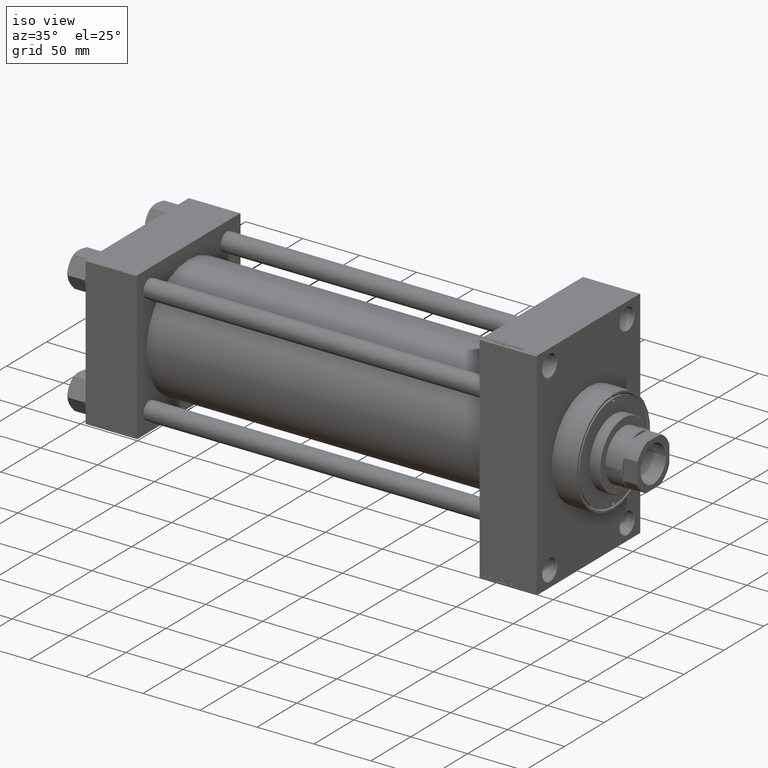
[diagram: clean part render]
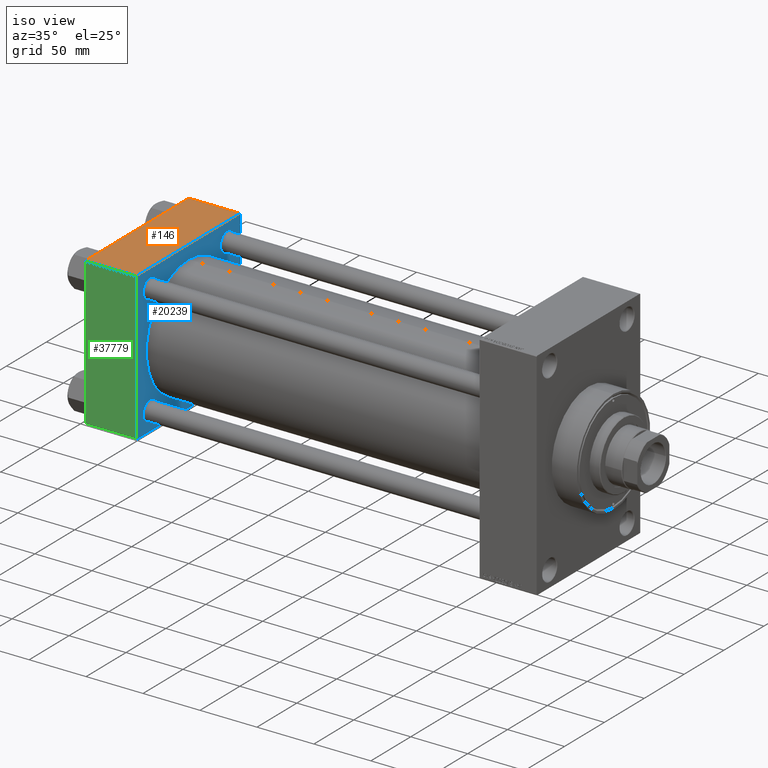
[diagram: same view with three faces highlighted in distinct colors, each labeled with its STEP entity id]
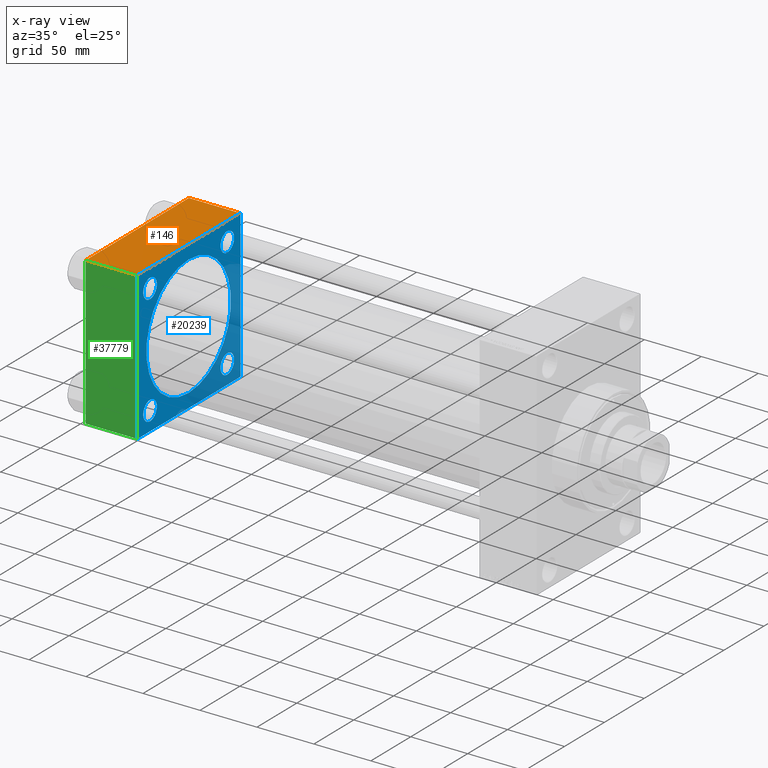
[diagram: x-ray of the same camera — body ghosted, the three highlighted faces saturated]
A machine part, iso view with three faces highlighted in distinct colors.
The next image is the same camera in x-ray (body ghosted, the three faces saturated) — at least one of them is partly hidden behind the body in this view.
Their STEP definitions:

[orange] entity #146 — the highlighted planar face has unit normal (0, 0, -1).
#146 = ADVANCED_FACE ( 'NONE', ( #1379 ), #15192, .F. ) ;
#1379 = FACE_OUTER_BOUND ( 'NONE', #41665, .T. ) ;
#1572 = ORIENTED_EDGE ( 'NONE', *, *, #14324, .T. ) ;
#3496 = CARTESIAN_POINT ( 'NONE',  ( 0.000000000000000000, 64.49999999999997158, 65.00000000000001421 ) ) ;
#4188 = CARTESIAN_POINT ( 'NONE',  ( 45.00000000000000000, 64.49999999999997158, 65.00000000000001421 ) ) ;
#4208 = VERTEX_POINT ( 'NONE', #4188 ) ;
#4721 = VECTOR ( 'NONE', #36672, 1000.000000000000000 ) ;
#8999 = LINE ( 'NONE', #22829, #17438 ) ;
#12673 = EDGE_CURVE ( 'NONE', #23433, #38863, #8999, .T. ) ;
#13557 = CARTESIAN_POINT ( 'NONE',  ( 45.00000000000000000, -64.49999999999997158, 65.00000000000000000 ) ) ;
#14324 = EDGE_CURVE ( 'NONE', #4208, #41611, #23452, .T. ) ;
#15192 = PLANE ( 'NONE',  #22411 ) ;
#16128 = DIRECTION ( 'NONE',  ( 0.000000000000000000, 1.067522139062650548E-16, -1.000000000000000000 ) ) ;
#17438 = VECTOR ( 'NONE', #18955, 1000.000000000000000 ) ;
#18955 = DIRECTION ( 'NONE',  ( 1.000000000000000000, 0.000000000000000000, 0.000000000000000000 ) ) ;
#19081 = ORIENTED_EDGE ( 'NONE', *, *, #28165, .T. ) ;
#19819 = CARTESIAN_POINT ( 'NONE',  ( 0.000000000000000000, 64.49999999999997158, 65.00000000000001421 ) ) ;
#22411 = AXIS2_PLACEMENT_3D ( 'NONE', #33844, #16128, #44983 ) ;
#22829 = CARTESIAN_POINT ( 'NONE',  ( 45.00000000000000000, -64.49999999999997158, 65.00000000000000000 ) ) ;
#23433 = VERTEX_POINT ( 'NONE', #27200 ) ;
#23452 = LINE ( 'NONE', #19819, #35317 ) ;
#24141 = CARTESIAN_POINT ( 'NONE',  ( 0.000000000000000000, 65.00000000000000000, 65.00000000000001421 ) ) ;
#27200 = CARTESIAN_POINT ( 'NONE',  ( 0.000000000000000000, -64.49999999999997158, 65.00000000000000000 ) ) ;
#28165 = EDGE_CURVE ( 'NONE', #41611, #23433, #42565, .T. ) ;
#30137 = DIRECTION ( 'NONE',  ( 0.000000000000000000, -1.000000000000000000, -1.067522139062650425E-16 ) ) ;
#33059 = LINE ( 'NONE', #37402, #40247 ) ;
#33844 = CARTESIAN_POINT ( 'NONE',  ( 45.00000000000000000, 65.00000000000000000, 65.00000000000001421 ) ) ;
#34605 = DIRECTION ( 'NONE',  ( -1.000000000000000000, 0.000000000000000000, 0.000000000000000000 ) ) ;
#35317 = VECTOR ( 'NONE', #34605, 1000.000000000000000 ) ;
#36672 = DIRECTION ( 'NONE',  ( 0.000000000000000000, -1.000000000000000000, -1.067522139062650425E-16 ) ) ;
#37402 = CARTESIAN_POINT ( 'NONE',  ( 45.00000000000000000, 65.00000000000000000, 65.00000000000001421 ) ) ;
#38863 = VERTEX_POINT ( 'NONE', #13557 ) ;
#39755 = ORIENTED_EDGE ( 'NONE', *, *, #40709, .F. ) ;
#40247 = VECTOR ( 'NONE', #30137, 1000.000000000000000 ) ;
#40709 = EDGE_CURVE ( 'NONE', #4208, #38863, #33059, .T. ) ;
#41611 = VERTEX_POINT ( 'NONE', #3496 ) ;
#41665 = EDGE_LOOP ( 'NONE', ( #19081, #46612, #39755, #1572 ) ) ;
#42565 = LINE ( 'NONE', #24141, #4721 ) ;
#44983 = DIRECTION ( 'NONE',  ( 0.000000000000000000, 1.000000000000000000, 1.067522139062650548E-16 ) ) ;
#46612 = ORIENTED_EDGE ( 'NONE', *, *, #12673, .T. ) ;

[blue] entity #20239 — the highlighted planar face has unit normal (-1, 0, 0).
#880 = CARTESIAN_POINT ( 'NONE',  ( 45.00000000000000000, -48.44999999999999574, 48.45000000000003126 ) ) ;
#1346 = ORIENTED_EDGE ( 'NONE', *, *, #9641, .F. ) ;
#1368 = CARTESIAN_POINT ( 'NONE',  ( 45.00000000000000000, -64.49999999999994316, -65.00000000000000000 ) ) ;
#1771 = CIRCLE ( 'NONE', #40459, 8.499999999999952038 ) ;
#1846 = LINE ( 'NONE', #16598, #12914 ) ;
#2494 = CARTESIAN_POINT ( 'NONE',  ( 45.00000000000000000, 48.45000000000000995, -48.45000000000001705 ) ) ;
#2545 = CARTESIAN_POINT ( 'NONE',  ( 45.00000000000000000, 48.45000000000000995, 48.45000000000001705 ) ) ;
#2917 = LINE ( 'NONE', #29563, #18646 ) ;
#3108 = AXIS2_PLACEMENT_3D ( 'NONE', #880, #4498, #14928 ) ;
#3159 = DIRECTION ( 'NONE',  ( 0.000000000000000000, 0.000000000000000000, -1.000000000000000000 ) ) ;
#3241 = EDGE_LOOP ( 'NONE', ( #39406, #43212, #11653, #4485, #29280, #11191, #45249, #31557 ) ) ;
#3296 = FACE_BOUND ( 'NONE', #41441, .T. ) ;
#3339 = EDGE_CURVE ( 'NONE', #28253, #22154, #2917, .T. ) ;
#3673 = ORIENTED_EDGE ( 'NONE', *, *, #45056, .F. ) ;
#3776 = DIRECTION ( 'NONE',  ( 0.000000000000000000, 0.000000000000000000, 1.000000000000000000 ) ) ;
#3851 = VECTOR ( 'NONE', #7591, 1000.000000000000114 ) ;
#4188 = CARTESIAN_POINT ( 'NONE',  ( 45.00000000000000000, 64.49999999999997158, 65.00000000000001421 ) ) ;
#4208 = VERTEX_POINT ( 'NONE', #4188 ) ;
#4229 = EDGE_CURVE ( 'NONE', #9117, #27866, #46635, .T. ) ;
#4485 = ORIENTED_EDGE ( 'NONE', *, *, #36975, .T. ) ;
#4498 = DIRECTION ( 'NONE',  ( -1.000000000000000000, 0.000000000000000000, -0.000000000000000000 ) ) ;
#4631 = VERTEX_POINT ( 'NONE', #29457 ) ;
#4808 = VECTOR ( 'NONE', #37698, 1000.000000000000000 ) ;
#6100 = DIRECTION ( 'NONE',  ( -0.000000000000000000, 0.7071067811865474617, 0.7071067811865474617 ) ) ;
#6120 = DIRECTION ( 'NONE',  ( 0.000000000000000000, 0.000000000000000000, 1.000000000000000000 ) ) ;
#6325 = AXIS2_PLACEMENT_3D ( 'NONE', #39061, #27925, #28167 ) ;
#6394 = EDGE_CURVE ( 'NONE', #26776, #38303, #6453, .T. ) ;
#6453 = CIRCLE ( 'NONE', #37405, 8.500000000000063949 ) ;
#6663 = EDGE_CURVE ( 'NONE', #38863, #28253, #23075, .T. ) ;
#6849 = CIRCLE ( 'NONE', #47856, 8.500000000000063949 ) ;
#7133 = CIRCLE ( 'NONE', #6325, 53.00000000000000711 ) ;
#7180 = DIRECTION ( 'NONE',  ( -1.000000000000000000, 0.000000000000000000, -0.000000000000000000 ) ) ;
#7542 = VERTEX_POINT ( 'NONE', #9289 ) ;
#7591 = DIRECTION ( 'NONE',  ( 0.000000000000000000, -0.7071067811865474617, 0.7071067811865474617 ) ) ;
#7848 = DIRECTION ( 'NONE',  ( -0.000000000000000000, -0.7071067811865672237, -0.7071067811865279218 ) ) ;
#8041 = DIRECTION ( 'NONE',  ( 0.000000000000000000, 0.000000000000000000, 1.000000000000000000 ) ) ;
#8393 = DIRECTION ( 'NONE',  ( 0.000000000000000000, -1.000000000000000000, -1.067522139062650425E-16 ) ) ;
#8643 = CIRCLE ( 'NONE', #29539, 8.499999999999952038 ) ;
#9117 = VERTEX_POINT ( 'NONE', #10980 ) ;
#9289 = CARTESIAN_POINT ( 'NONE',  ( 45.00000000000000000, -64.49999999999994316, -65.00000000000000000 ) ) ;
#9641 = EDGE_CURVE ( 'NONE', #12181, #38027, #27437, .T. ) ;
#9921 = ORIENTED_EDGE ( 'NONE', *, *, #33663, .T. ) ;
#10233 = DIRECTION ( 'NONE',  ( -1.000000000000000000, 0.000000000000000000, -0.000000000000000000 ) ) ;
#10287 = DIRECTION ( 'NONE',  ( 0.000000000000000000, 0.000000000000000000, 1.000000000000000000 ) ) ;
#10683 = VERTEX_POINT ( 'NONE', #14409 ) ;
#10763 = DIRECTION ( 'NONE',  ( -1.000000000000000000, 0.000000000000000000, -0.000000000000000000 ) ) ;
#10980 = CARTESIAN_POINT ( 'NONE',  ( 45.00000000000000000, -48.44999999999999574, 56.95000000000008811 ) ) ;
#10982 = CARTESIAN_POINT ( 'NONE',  ( 45.00000000000000000, 64.49999999999997158, 65.00000000000001421 ) ) ;
#11191 = ORIENTED_EDGE ( 'NONE', *, *, #6663, .T. ) ;
#11653 = ORIENTED_EDGE ( 'NONE', *, *, #14832, .F. ) ;
#12181 = VERTEX_POINT ( 'NONE', #28789 ) ;
#12463 = VERTEX_POINT ( 'NONE', #24299 ) ;
#12914 = VECTOR ( 'NONE', #8393, 1000.000000000000000 ) ;
#13316 = AXIS2_PLACEMENT_3D ( 'NONE', #2494, #23797, #6120 ) ;
#13511 = AXIS2_PLACEMENT_3D ( 'NONE', #40600, #22179, #3776 ) ;
#13557 = CARTESIAN_POINT ( 'NONE',  ( 45.00000000000000000, -64.49999999999997158, 65.00000000000000000 ) ) ;
#14409 = CARTESIAN_POINT ( 'NONE',  ( 45.00000000000000000, 64.49999999999997158, -64.99999999999998579 ) ) ;
#14434 = FACE_BOUND ( 'NONE', #14868, .T. ) ;
#14832 = EDGE_CURVE ( 'NONE', #33095, #4631, #22870, .T. ) ;
#14868 = EDGE_LOOP ( 'NONE', ( #3673, #1346 ) ) ;
#14928 = DIRECTION ( 'NONE',  ( 0.000000000000000000, 0.000000000000000000, 1.000000000000000000 ) ) ;
#15363 = DIRECTION ( 'NONE',  ( 0.000000000000000000, 0.000000000000000000, -1.000000000000000000 ) ) ;
#15514 = EDGE_LOOP ( 'NONE', ( #42728, #26293 ) ) ;
#15580 = CARTESIAN_POINT ( 'NONE',  ( 45.00000000000000000, -48.44999999999999574, -39.94999999999996732 ) ) ;
#15757 = EDGE_CURVE ( 'NONE', #10683, #4631, #25218, .T. ) ;
#16521 = DIRECTION ( 'NONE',  ( -1.000000000000000000, 0.000000000000000000, -0.000000000000000000 ) ) ;
#16598 = CARTESIAN_POINT ( 'NONE',  ( 45.00000000000000000, 65.00000000000000000, -64.99999999999998579 ) ) ;
#17489 = DIRECTION ( 'NONE',  ( 0.000000000000000000, 0.000000000000000000, 1.000000000000000000 ) ) ;
#18319 = EDGE_CURVE ( 'NONE', #10683, #7542, #1846, .T. ) ;
#18450 = DIRECTION ( 'NONE',  ( -1.000000000000000000, 0.000000000000000000, -0.000000000000000000 ) ) ;
#18646 = VECTOR ( 'NONE', #3159, 1000.000000000000000 ) ;
#18673 = ORIENTED_EDGE ( 'NONE', *, *, #23515, .T. ) ;
#18693 = CARTESIAN_POINT ( 'NONE',  ( 45.00000000000000000, -48.44999999999999574, -48.45000000000003126 ) ) ;
#18705 = CIRCLE ( 'NONE', #13316, 8.499999999999952038 ) ;
#18757 = CARTESIAN_POINT ( 'NONE',  ( 45.00000000000000000, 65.00000000000000000, 65.00000000000001421 ) ) ;
#18800 = CARTESIAN_POINT ( 'NONE',  ( 45.00000000000000000, 48.45000000000000995, 39.95000000000005969 ) ) ;
#19141 = ORIENTED_EDGE ( 'NONE', *, *, #41407, .T. ) ;
#20239 = ADVANCED_FACE ( 'NONE', ( #36473, #28256, #3296, #47619, #14434, #29220 ), #43980, .F. ) ;
#20984 = DIRECTION ( 'NONE',  ( -0.000000000000000000, 0.000000000000000000, 1.000000000000000000 ) ) ;
#21233 = CARTESIAN_POINT ( 'NONE',  ( 45.00000000000000000, -65.00000000000000000, 64.50000000000000000 ) ) ;
#21390 = LINE ( 'NONE', #10982, #3851 ) ;
#21603 = CARTESIAN_POINT ( 'NONE',  ( 45.00000000000000000, 48.45000000000000995, -48.45000000000001705 ) ) ;
#22154 = VERTEX_POINT ( 'NONE', #45711 ) ;
#22179 = DIRECTION ( 'NONE',  ( 1.000000000000000000, -0.000000000000000000, 0.000000000000000000 ) ) ;
#22425 = DIRECTION ( 'NONE',  ( -1.000000000000000000, 0.000000000000000000, -0.000000000000000000 ) ) ;
#22870 = LINE ( 'NONE', #18757, #40725 ) ;
#22921 = LINE ( 'NONE', #1368, #4808 ) ;
#23075 = LINE ( 'NONE', #26482, #30426 ) ;
#23515 = EDGE_CURVE ( 'NONE', #39268, #43804, #39315, .T. ) ;
#23547 = ORIENTED_EDGE ( 'NONE', *, *, #6394, .T. ) ;
#23797 = DIRECTION ( 'NONE',  ( -1.000000000000000000, 0.000000000000000000, -0.000000000000000000 ) ) ;
#24299 = CARTESIAN_POINT ( 'NONE',  ( 45.00000000000000000, 48.45000000000000995, -39.95000000000005969 ) ) ;
#24915 = CARTESIAN_POINT ( 'NONE',  ( 44.99999999999998579, -2.602085213965210642E-15, 53.00000000000000711 ) ) ;
#25218 = LINE ( 'NONE', #40002, #44622 ) ;
#26293 = ORIENTED_EDGE ( 'NONE', *, *, #43831, .T. ) ;
#26426 = CARTESIAN_POINT ( 'NONE',  ( 45.00000000000000000, 48.45000000000000995, -56.94999999999996732 ) ) ;
#26482 = CARTESIAN_POINT ( 'NONE',  ( 45.00000000000000000, -65.00000000000000000, 64.50000000000000000 ) ) ;
#26776 = VERTEX_POINT ( 'NONE', #28038 ) ;
#27413 = DIRECTION ( 'NONE',  ( -1.000000000000000000, 0.000000000000000000, -0.000000000000000000 ) ) ;
#27437 = CIRCLE ( 'NONE', #13511, 53.00000000000000711 ) ;
#27555 = VERTEX_POINT ( 'NONE', #26426 ) ;
#27866 = VERTEX_POINT ( 'NONE', #40179 ) ;
#27925 = DIRECTION ( 'NONE',  ( 1.000000000000000000, -0.000000000000000000, 0.000000000000000000 ) ) ;
#28038 = CARTESIAN_POINT ( 'NONE',  ( 45.00000000000000000, -48.44999999999999574, -56.95000000000008811 ) ) ;
#28167 = DIRECTION ( 'NONE',  ( 0.000000000000000000, 0.000000000000000000, 1.000000000000000000 ) ) ;
#28253 = VERTEX_POINT ( 'NONE', #21233 ) ;
#28256 = FACE_BOUND ( 'NONE', #15514, .T. ) ;
#28789 = CARTESIAN_POINT ( 'NONE',  ( 44.99999999999998579, 3.888542821515762466E-15, -53.00000000000000711 ) ) ;
#29220 = FACE_OUTER_BOUND ( 'NONE', #3241, .T. ) ;
#29280 = ORIENTED_EDGE ( 'NONE', *, *, #40709, .T. ) ;
#29457 = CARTESIAN_POINT ( 'NONE',  ( 45.00000000000000000, 65.00000000000000000, -64.49999999999995737 ) ) ;
#29539 = AXIS2_PLACEMENT_3D ( 'NONE', #21603, #10233, #17489 ) ;
#29563 = CARTESIAN_POINT ( 'NONE',  ( 45.00000000000000000, -65.00000000000000000, 65.00000000000000000 ) ) ;
#29941 = CARTESIAN_POINT ( 'NONE',  ( 45.00000000000000000, -48.44999999999999574, -48.45000000000003126 ) ) ;
#30137 = DIRECTION ( 'NONE',  ( 0.000000000000000000, -1.000000000000000000, -1.067522139062650425E-16 ) ) ;
#30426 = VECTOR ( 'NONE', #7848, 1000.000000000000000 ) ;
#31303 = DIRECTION ( 'NONE',  ( 0.000000000000000000, 0.000000000000000000, 1.000000000000000000 ) ) ;
#31557 = ORIENTED_EDGE ( 'NONE', *, *, #44676, .T. ) ;
#32502 = CIRCLE ( 'NONE', #3108, 8.500000000000063949 ) ;
#32620 = ORIENTED_EDGE ( 'NONE', *, *, #4229, .T. ) ;
#33059 = LINE ( 'NONE', #37402, #40247 ) ;
#33095 = VERTEX_POINT ( 'NONE', #43108 ) ;
#33663 = EDGE_CURVE ( 'NONE', #38303, #26776, #6849, .T. ) ;
#35050 = AXIS2_PLACEMENT_3D ( 'NONE', #38310, #27413, #38538 ) ;
#36473 = FACE_BOUND ( 'NONE', #41425, .T. ) ;
#36975 = EDGE_CURVE ( 'NONE', #33095, #4208, #21390, .T. ) ;
#37207 = DIRECTION ( 'NONE',  ( 0.000000000000000000, 0.000000000000000000, 1.000000000000000000 ) ) ;
#37389 = EDGE_LOOP ( 'NONE', ( #18673, #40825 ) ) ;
#37402 = CARTESIAN_POINT ( 'NONE',  ( 45.00000000000000000, 65.00000000000000000, 65.00000000000001421 ) ) ;
#37405 = AXIS2_PLACEMENT_3D ( 'NONE', #29941, #22425, #37207 ) ;
#37698 = DIRECTION ( 'NONE',  ( 0.000000000000000000, 0.7071067811865279218, -0.7071067811865671127 ) ) ;
#38027 = VERTEX_POINT ( 'NONE', #24915 ) ;
#38303 = VERTEX_POINT ( 'NONE', #15580 ) ;
#38310 = CARTESIAN_POINT ( 'NONE',  ( 45.00000000000000000, -48.44999999999999574, 48.45000000000003126 ) ) ;
#38538 = DIRECTION ( 'NONE',  ( 0.000000000000000000, 0.000000000000000000, 1.000000000000000000 ) ) ;
#38863 = VERTEX_POINT ( 'NONE', #13557 ) ;
#39061 = CARTESIAN_POINT ( 'NONE',  ( 44.99999999999998579, -2.602085213965210642E-15, 0.000000000000000000 ) ) ;
#39268 = VERTEX_POINT ( 'NONE', #18800 ) ;
#39315 = CIRCLE ( 'NONE', #46297, 8.499999999999952038 ) ;
#39406 = ORIENTED_EDGE ( 'NONE', *, *, #18319, .F. ) ;
#40002 = CARTESIAN_POINT ( 'NONE',  ( 45.00000000000000000, 65.00000000000000000, -64.49999999999995737 ) ) ;
#40179 = CARTESIAN_POINT ( 'NONE',  ( 45.00000000000000000, -48.44999999999999574, 39.94999999999996732 ) ) ;
#40247 = VECTOR ( 'NONE', #30137, 1000.000000000000000 ) ;
#40358 = CARTESIAN_POINT ( 'NONE',  ( 45.00000000000000000, 0.000000000000000000, 0.000000000000000000 ) ) ;
#40459 = AXIS2_PLACEMENT_3D ( 'NONE', #2545, #10763, #10287 ) ;
#40600 = CARTESIAN_POINT ( 'NONE',  ( 44.99999999999998579, -2.602085213965210642E-15, 0.000000000000000000 ) ) ;
#40709 = EDGE_CURVE ( 'NONE', #4208, #38863, #33059, .T. ) ;
#40725 = VECTOR ( 'NONE', #15363, 1000.000000000000000 ) ;
#40825 = ORIENTED_EDGE ( 'NONE', *, *, #47336, .T. ) ;
#41407 = EDGE_CURVE ( 'NONE', #27866, #9117, #32502, .T. ) ;
#41425 = EDGE_LOOP ( 'NONE', ( #23547, #9921 ) ) ;
#41441 = EDGE_LOOP ( 'NONE', ( #19141, #32620 ) ) ;
#42728 = ORIENTED_EDGE ( 'NONE', *, *, #45012, .T. ) ;
#43108 = CARTESIAN_POINT ( 'NONE',  ( 45.00000000000000000, 65.00000000000000000, 64.49999999999998579 ) ) ;
#43159 = CARTESIAN_POINT ( 'NONE',  ( 45.00000000000000000, 48.45000000000000995, 48.45000000000001705 ) ) ;
#43212 = ORIENTED_EDGE ( 'NONE', *, *, #15757, .T. ) ;
#43414 = CARTESIAN_POINT ( 'NONE',  ( 45.00000000000000000, 48.45000000000000995, 56.94999999999996732 ) ) ;
#43804 = VERTEX_POINT ( 'NONE', #43414 ) ;
#43831 = EDGE_CURVE ( 'NONE', #12463, #27555, #8643, .T. ) ;
#43980 = PLANE ( 'NONE',  #47725 ) ;
#44622 = VECTOR ( 'NONE', #6100, 1000.000000000000114 ) ;
#44676 = EDGE_CURVE ( 'NONE', #22154, #7542, #22921, .T. ) ;
#45012 = EDGE_CURVE ( 'NONE', #27555, #12463, #18705, .T. ) ;
#45056 = EDGE_CURVE ( 'NONE', #38027, #12181, #7133, .T. ) ;
#45249 = ORIENTED_EDGE ( 'NONE', *, *, #3339, .T. ) ;
#45711 = CARTESIAN_POINT ( 'NONE',  ( 45.00000000000000000, -65.00000000000000000, -64.49999999999991473 ) ) ;
#46297 = AXIS2_PLACEMENT_3D ( 'NONE', #43159, #16521, #31303 ) ;
#46635 = CIRCLE ( 'NONE', #35050, 8.500000000000063949 ) ;
#47336 = EDGE_CURVE ( 'NONE', #43804, #39268, #1771, .T. ) ;
#47619 = FACE_BOUND ( 'NONE', #37389, .T. ) ;
#47725 = AXIS2_PLACEMENT_3D ( 'NONE', #40358, #7180, #20984 ) ;
#47856 = AXIS2_PLACEMENT_3D ( 'NONE', #18693, #18450, #8041 ) ;

[green] entity #37779 — the highlighted planar face has unit normal (0, 1, 0).
#851 = VECTOR ( 'NONE', #1731, 1000.000000000000000 ) ;
#1731 = DIRECTION ( 'NONE',  ( 1.000000000000000000, 0.000000000000000000, 0.000000000000000000 ) ) ;
#2083 = EDGE_CURVE ( 'NONE', #21395, #22154, #13097, .T. ) ;
#2487 = DIRECTION ( 'NONE',  ( 0.000000000000000000, 0.000000000000000000, -1.000000000000000000 ) ) ;
#2917 = LINE ( 'NONE', #29563, #18646 ) ;
#3159 = DIRECTION ( 'NONE',  ( 0.000000000000000000, 0.000000000000000000, -1.000000000000000000 ) ) ;
#3339 = EDGE_CURVE ( 'NONE', #28253, #22154, #2917, .T. ) ;
#3799 = EDGE_LOOP ( 'NONE', ( #5769, #40760, #11074, #11597 ) ) ;
#5769 = ORIENTED_EDGE ( 'NONE', *, *, #33549, .T. ) ;
#10167 = VECTOR ( 'NONE', #28887, 1000.000000000000000 ) ;
#11074 = ORIENTED_EDGE ( 'NONE', *, *, #3339, .F. ) ;
#11597 = ORIENTED_EDGE ( 'NONE', *, *, #43854, .T. ) ;
#11792 = CARTESIAN_POINT ( 'NONE',  ( 0.000000000000000000, -65.00000000000000000, 64.50000000000000000 ) ) ;
#13097 = LINE ( 'NONE', #35142, #851 ) ;
#13239 = CARTESIAN_POINT ( 'NONE',  ( 0.000000000000000000, -65.00000000000000000, -64.49999999999991473 ) ) ;
#14595 = VECTOR ( 'NONE', #2487, 1000.000000000000000 ) ;
#17794 = AXIS2_PLACEMENT_3D ( 'NONE', #38151, #41314, #45650 ) ;
#18646 = VECTOR ( 'NONE', #3159, 1000.000000000000000 ) ;
#19256 = FACE_OUTER_BOUND ( 'NONE', #3799, .T. ) ;
#19968 = PLANE ( 'NONE',  #17794 ) ;
#21233 = CARTESIAN_POINT ( 'NONE',  ( 45.00000000000000000, -65.00000000000000000, 64.50000000000000000 ) ) ;
#21365 = LINE ( 'NONE', #35671, #10167 ) ;
#21395 = VERTEX_POINT ( 'NONE', #13239 ) ;
#22154 = VERTEX_POINT ( 'NONE', #45711 ) ;
#28253 = VERTEX_POINT ( 'NONE', #21233 ) ;
#28887 = DIRECTION ( 'NONE',  ( -1.000000000000000000, 0.000000000000000000, 0.000000000000000000 ) ) ;
#29563 = CARTESIAN_POINT ( 'NONE',  ( 45.00000000000000000, -65.00000000000000000, 65.00000000000000000 ) ) ;
#33549 = EDGE_CURVE ( 'NONE', #47124, #21395, #40013, .T. ) ;
#35142 = CARTESIAN_POINT ( 'NONE',  ( 45.00000000000000000, -65.00000000000000000, -64.49999999999991473 ) ) ;
#35671 = CARTESIAN_POINT ( 'NONE',  ( 45.00000000000000000, -65.00000000000000000, 64.50000000000000000 ) ) ;
#37779 = ADVANCED_FACE ( 'NONE', ( #19256 ), #19968, .F. ) ;
#38151 = CARTESIAN_POINT ( 'NONE',  ( 45.00000000000000000, -65.00000000000000000, 65.00000000000000000 ) ) ;
#39540 = CARTESIAN_POINT ( 'NONE',  ( 0.000000000000000000, -65.00000000000000000, 65.00000000000000000 ) ) ;
#40013 = LINE ( 'NONE', #39540, #14595 ) ;
#40760 = ORIENTED_EDGE ( 'NONE', *, *, #2083, .T. ) ;
#41314 = DIRECTION ( 'NONE',  ( -0.000000000000000000, 1.000000000000000000, 0.000000000000000000 ) ) ;
#43854 = EDGE_CURVE ( 'NONE', #28253, #47124, #21365, .T. ) ;
#45650 = DIRECTION ( 'NONE',  ( 0.000000000000000000, -0.000000000000000000, 1.000000000000000000 ) ) ;
#45711 = CARTESIAN_POINT ( 'NONE',  ( 45.00000000000000000, -65.00000000000000000, -64.49999999999991473 ) ) ;
#47124 = VERTEX_POINT ( 'NONE', #11792 ) ;